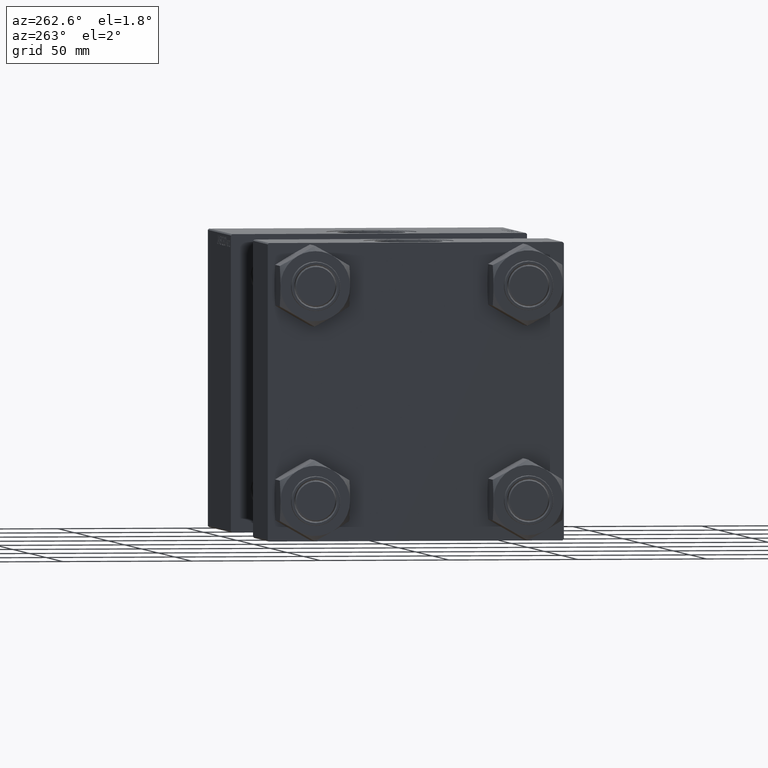
[diagram: clean part render]
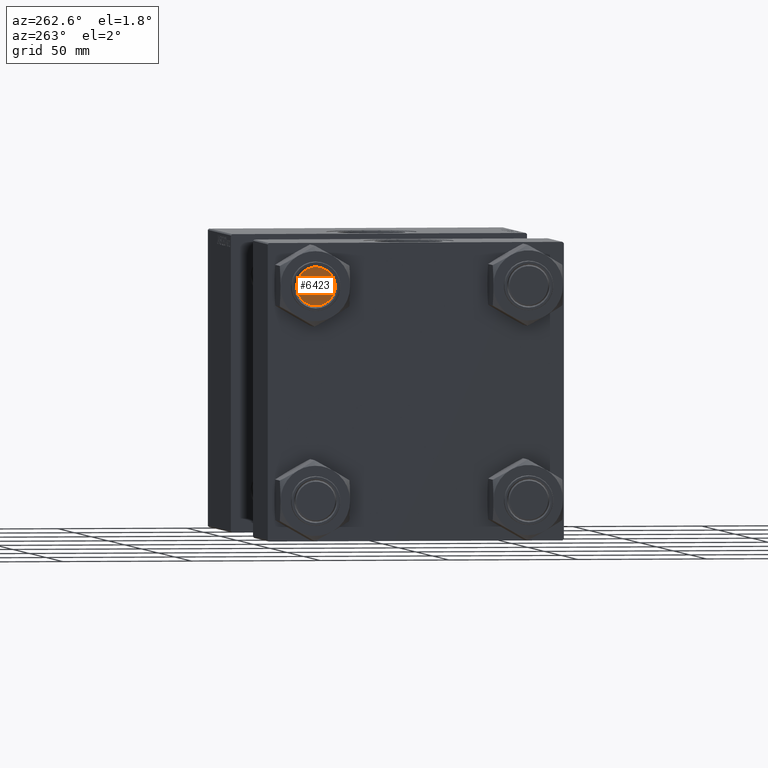
[diagram: same view with one face highlighted and labeled with its STEP entity id]
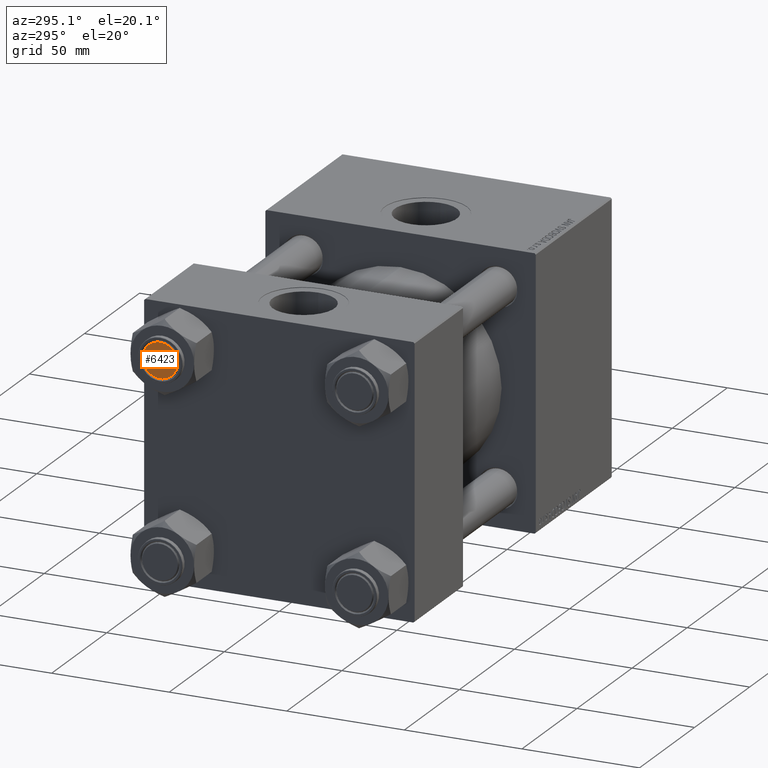
[diagram: same view with one face highlighted and labeled with its STEP entity id]
A machine part, auxiliary view. The second image highlights one B-rep face of the part: STEP entity #6423.
A second angle (auxiliary view) of the same face is appended — the face is thin or edge-on in the first view.
In plain terms, the highlighted planar face has unit normal (1, -0, -0).
Its self-contained STEP definition (entity closure, byte-faithful):
#554 = CIRCLE ( 'NONE', #37466, 7.500000000000020428 ) ;
#3701 = CARTESIAN_POINT ( 'NONE',  ( 0.000000000000000000, 0.000000000000000000, 0.000000000000000000 ) ) ;
#5726 = CARTESIAN_POINT ( 'NONE',  ( 0.000000000000000000, 0.000000000000000000, 0.000000000000000000 ) ) ;
#6423 = ADVANCED_FACE ( 'NONE', ( #20540 ), #8973, .F. ) ;
#8973 = PLANE ( 'NONE',  #45344 ) ;
#16116 = CARTESIAN_POINT ( 'NONE',  ( 7.500000000000020428, 0.000000000000000000, 0.000000000000000000 ) ) ;
#17568 = DIRECTION ( 'NONE',  ( -0.000000000000000000, -0.000000000000000000, -1.000000000000000000 ) ) ;
#17728 = ORIENTED_EDGE ( 'NONE', *, *, #20313, .T. ) ;
#18806 = AXIS2_PLACEMENT_3D ( 'NONE', #3701, #27356, #39673 ) ;
#20313 = EDGE_CURVE ( 'NONE', #34271, #28474, #554, .T. ) ;
#20540 = FACE_OUTER_BOUND ( 'NONE', #48135, .T. ) ;
#24514 = CIRCLE ( 'NONE', #18806, 7.500000000000020428 ) ;
#27356 = DIRECTION ( 'NONE',  ( -0.000000000000000000, -0.000000000000000000, -1.000000000000000000 ) ) ;
#28474 = VERTEX_POINT ( 'NONE', #16116 ) ;
#34271 = VERTEX_POINT ( 'NONE', #43601 ) ;
#36968 = CARTESIAN_POINT ( 'NONE',  ( 0.000000000000000000, 0.000000000000000000, 0.000000000000000000 ) ) ;
#37466 = AXIS2_PLACEMENT_3D ( 'NONE', #5726, #17568, #40441 ) ;
#39673 = DIRECTION ( 'NONE',  ( 1.000000000000000000, 0.000000000000000000, 0.000000000000000000 ) ) ;
#40246 = ORIENTED_EDGE ( 'NONE', *, *, #41770, .T. ) ;
#40441 = DIRECTION ( 'NONE',  ( 1.000000000000000000, 0.000000000000000000, 0.000000000000000000 ) ) ;
#41083 = DIRECTION ( 'NONE',  ( 0.000000000000000000, 0.000000000000000000, 1.000000000000000000 ) ) ;
#41770 = EDGE_CURVE ( 'NONE', #28474, #34271, #24514, .T. ) ;
#43601 = CARTESIAN_POINT ( 'NONE',  ( -7.500000000000020428, 9.491012693392001592E-16, 0.000000000000000000 ) ) ;
#45344 = AXIS2_PLACEMENT_3D ( 'NONE', #36968, #41083, #48251 ) ;
#48135 = EDGE_LOOP ( 'NONE', ( #40246, #17728 ) ) ;
#48251 = DIRECTION ( 'NONE',  ( 1.000000000000000000, 0.000000000000000000, -0.000000000000000000 ) ) ;